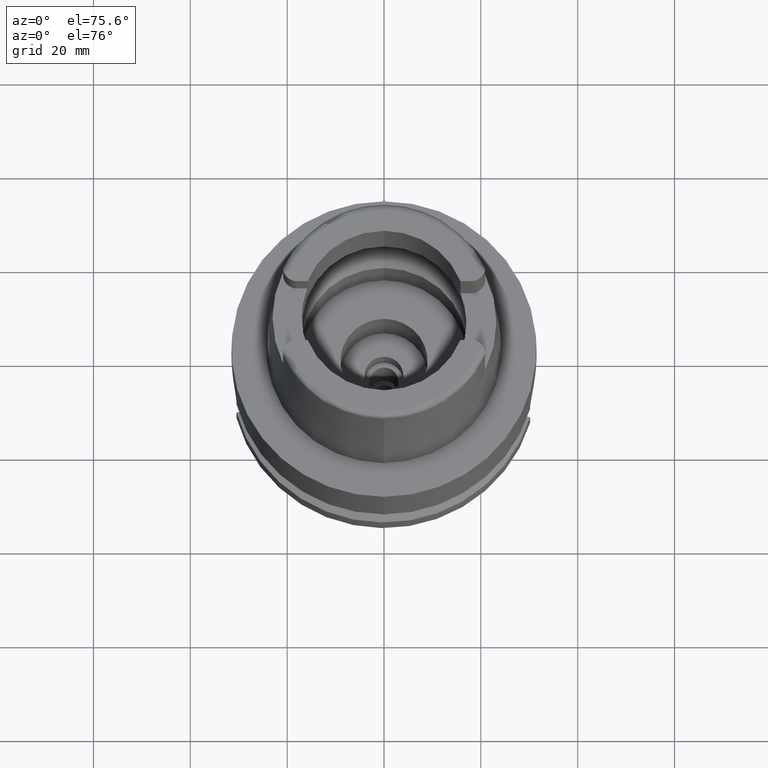
[diagram: clean part render]
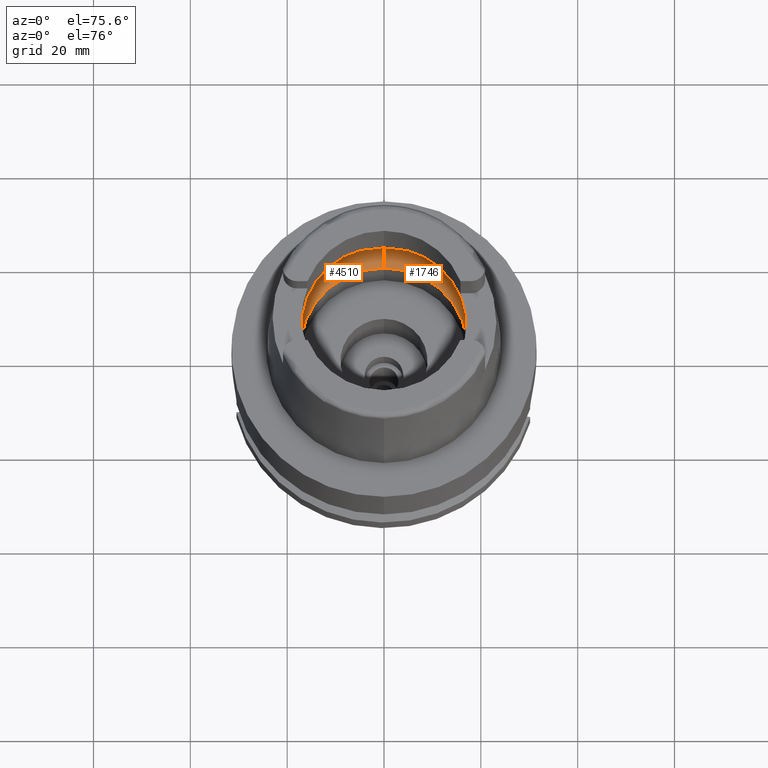
[diagram: same view with one multi-face feature highlighted, each face labeled with its STEP entity id]
A machine part, auxiliary view. The highlighted faces form ONE feature: a constant-radius fillet chain: 2 tangent blend faces with common blend radius 8 mm. The faces share edges in the B-rep.
Their STEP definitions:
[1] entity #1746 (Torus):
#14 = CARTESIAN_POINT ( 'NONE',  ( 19.92517807509134542, 1.343606312467364949, 5.498959791250346285 ) ) ;
#52 = CIRCLE ( 'NONE', #2497, 17.25000000000000000 ) ;
#71 = DIRECTION ( 'NONE',  ( 0.9922879323327794543, -0.1239542631244973381, 0.0000000000000000000 ) ) ;
#99 = CARTESIAN_POINT ( 'NONE',  ( 19.93292498447956262, -1.081634995804885646, 5.408973391216312265 ) ) ;
#175 = AXIS2_PLACEMENT_3D ( 'NONE', #2569, #2219, #4746 ) ;
#295 = CARTESIAN_POINT ( 'NONE',  ( 0.0000000000000000000, 1.300407714776999850E-14, 6.186348233825000875 ) ) ;
#348 = CARTESIAN_POINT ( 'NONE',  ( 0.0000000000000000000, -20.00000000000000000, 6.186348233825000875 ) ) ;
#442 = CARTESIAN_POINT ( 'NONE',  ( 19.84575864665999845, 2.479085262491000030, 6.186348233825000875 ) ) ;
#603 = FACE_OUTER_BOUND ( 'NONE', #2875, .T. ) ;
#651 = VERTEX_POINT ( 'NONE', #348 ) ;
#775 = EDGE_CURVE ( 'NONE', #2667, #5281, #3168, .T. ) ;
#806 = CARTESIAN_POINT ( 'NONE',  ( 19.94501428475999560, 0.4960390492930685236, 5.249999999999998224 ) ) ;
#852 = DIRECTION ( 'NONE',  ( 0.0000000000000000000, -1.000000000000000000, 0.0000000000000000000 ) ) ;
#867 = CARTESIAN_POINT ( 'NONE',  ( 19.92391580955442976, 1.379816291121737759, 5.513020213659978630 ) ) ;
#878 = CIRCLE ( 'NONE', #4798, 20.00000000000001421 ) ;
#884 = CARTESIAN_POINT ( 'NONE',  ( 0.0000000000000000000, 1.300407714776999850E-14, 0.1500000000000999700 ) ) ;
#914 = VERTEX_POINT ( 'NONE', #3913 ) ;
#1002 = CARTESIAN_POINT ( 'NONE',  ( 19.94501428475999916, 0.0000000000000000000, 5.250000000000000000 ) ) ;
#1015 = EDGE_CURVE ( 'NONE', #2017, #2667, #2890, .T. ) ;
#1261 = CARTESIAN_POINT ( 'NONE',  ( 19.92467636941975329, 1.358114210471060179, 5.504562079295280519 ) ) ;
#1320 = CARTESIAN_POINT ( 'NONE',  ( 19.92547029497422173, 1.335024297796715276, 5.495681079271723668 ) ) ;
#1397 = CARTESIAN_POINT ( 'NONE',  ( 0.0000000000000000000, 12.00000000000000000, 6.186348233825000875 ) ) ;
#1453 = CARTESIAN_POINT ( 'NONE',  ( 19.92607280685966842, -1.317062051744477991, 5.488890658955079438 ) ) ;
#1618 = AXIS2_PLACEMENT_3D ( 'NONE', #1397, #3137, #5402 ) ;
#1655 = CARTESIAN_POINT ( 'NONE',  ( 19.86453976246544073, 2.328737270379882762, 6.053877863479702803 ) ) ;
#1688 = CARTESIAN_POINT ( 'NONE',  ( 19.94501428475999916, 0.0000000000000000000, 5.250000000000000000 ) ) ;
#1737 = ORIENTED_EDGE ( 'NONE', *, *, #4333, .F. ) ;
#1746 = ADVANCED_FACE ( 'NONE', ( #603 ), #4362, .F. ) ;
#1783 = DIRECTION ( 'NONE',  ( 0.0000000000000000000, -0.6562500000000006661, -0.7545435292281016393 ) ) ;
#1875 = CARTESIAN_POINT ( 'NONE',  ( 19.93655177456368932, -0.9261205406783343808, 5.364559693695562181 ) ) ;
#1893 = AXIS2_PLACEMENT_3D ( 'NONE', #295, #3337, #2080 ) ;
#1904 = CARTESIAN_POINT ( 'NONE',  ( 19.88332298889634231, -2.178372382208180191, 5.921392606155435168 ) ) ;
#1909 = CARTESIAN_POINT ( 'NONE',  ( 19.84575864665999845, -2.479085262491000030, 6.186348233825000875 ) ) ;
#1929 = AXIS2_PLACEMENT_3D ( 'NONE', #3095, #4925, #1783 ) ;
#1933 = ORIENTED_EDGE ( 'NONE', *, *, #4931, .T. ) ;
#2017 = VERTEX_POINT ( 'NONE', #3221 ) ;
#2080 = DIRECTION ( 'NONE',  ( 0.0000000000000000000, -1.000000000000000000, 0.0000000000000000000 ) ) ;
#2173 = CARTESIAN_POINT ( 'NONE',  ( 19.90056803128315366, 1.871071076464570382, 5.748193068414371609 ) ) ;
#2219 = DIRECTION ( 'NONE',  ( 0.0000000000000000000, 0.0000000000000000000, -1.000000000000000000 ) ) ;
#2305 = CARTESIAN_POINT ( 'NONE',  ( 19.93856665794375260, -0.8185641883581231681, 5.338679171357463282 ) ) ;
#2337 = CARTESIAN_POINT ( 'NONE',  ( 19.92705978489038188, -1.286927501587694644, 5.477698479241642993 ) ) ;
#2497 = AXIS2_PLACEMENT_3D ( 'NONE', #884, #4767, #852 ) ;
#2569 = CARTESIAN_POINT ( 'NONE',  ( 0.0000000000000000000, 1.300407714776999850E-14, 6.186348233825000875 ) ) ;
#2575 = CARTESIAN_POINT ( 'NONE',  ( 19.93856678297499840, 0.9459609421626632431, 5.348221403789444217 ) ) ;
#2600 = ORIENTED_EDGE ( 'NONE', *, *, #775, .F. ) ;
#2667 = VERTEX_POINT ( 'NONE', #5504 ) ;
#2697 = ORIENTED_EDGE ( 'NONE', *, *, #3703, .F. ) ;
#2875 = EDGE_LOOP ( 'NONE', ( #3149, #2600, #3877, #2697, #1933, #1737, #5152 ) ) ;
#2890 = CIRCLE ( 'NONE', #1618, 7.999999999999992895 ) ;
#2970 = CARTESIAN_POINT ( 'NONE',  ( 19.91448547043105677, 1.610506059392766698, 5.612923151449978221 ) ) ;
#2993 = VERTEX_POINT ( 'NONE', #5528 ) ;
#3019 = B_SPLINE_CURVE_WITH_KNOTS ( 'NONE', 3,
 ( #442, #1655, #5150, #2173, #4752, #2970, #4721, #5619, #867, #1261, #14, #1320, #2575, #806, #1688 ),
 .UNSPECIFIED., .F., .F.,
 ( 4, 2, 2, 1, 1, 1, 2, 2, 4 ),
 ( 0.0000000000000000000, 0.2499999999999902300, 0.3749999999999854561, 0.4374999999999831801, 0.4687499999999821254, 0.4843749999999816813, 0.4921874999999816258, 0.4999999999999815703, 1.000000000000000000 ),
 .UNSPECIFIED. ) ;
#3024 = CIRCLE ( 'NONE', #1929, 7.999999999999992895 ) ;
#3095 = CARTESIAN_POINT ( 'NONE',  ( 0.0000000000000000000, -12.00000000000000000, 6.186348233825000875 ) ) ;
#3137 = DIRECTION ( 'NONE',  ( 1.000000000000000000, 0.0000000000000000000, 0.0000000000000000000 ) ) ;
#3149 = ORIENTED_EDGE ( 'NONE', *, *, #3284, .F. ) ;
#3168 = CIRCLE ( 'NONE', #175, 20.00000000000000000 ) ;
#3195 = CARTESIAN_POINT ( 'NONE',  ( 19.92591688602272626, -1.321756895853151592, 5.490652547651766469 ) ) ;
#3220 = CARTESIAN_POINT ( 'NONE',  ( 19.84575864665999845, -2.479085262491000030, 6.186348233825000875 ) ) ;
#3221 = CARTESIAN_POINT ( 'NONE',  ( 0.0000000000000000000, 17.25000000000000000, 0.1500000000000999700 ) ) ;
#3284 = EDGE_CURVE ( 'NONE', #5281, #914, #3019, .T. ) ;
#3337 = DIRECTION ( 'NONE',  ( 0.0000000000000000000, 0.0000000000000000000, -1.000000000000000000 ) ) ;
#3451 = CARTESIAN_POINT ( 'NONE',  ( 0.0000000000000000000, 1.300407714776999850E-14, 6.186348233825000875 ) ) ;
#3567 = CARTESIAN_POINT ( 'NONE',  ( 19.93096047318400110, -1.157940144303397423, 5.432579051026481309 ) ) ;
#3626 = CARTESIAN_POINT ( 'NONE',  ( 19.92840408989551904, -1.244367450968541844, 5.462313551719105043 ) ) ;
#3703 = EDGE_CURVE ( 'NONE', #2993, #2017, #52, .T. ) ;
#3718 = CARTESIAN_POINT ( 'NONE',  ( 19.84575864665999845, 2.479085262491000030, 6.186348233825000875 ) ) ;
#3877 = ORIENTED_EDGE ( 'NONE', *, *, #1015, .F. ) ;
#3913 = CARTESIAN_POINT ( 'NONE',  ( 19.94501428475999916, 0.0000000000000000000, 5.250000000000000000 ) ) ;
#4003 = CARTESIAN_POINT ( 'NONE',  ( 19.94501428475999916, -0.2480014560080615882, 5.249999999999998224 ) ) ;
#4084 = CARTESIAN_POINT ( 'NONE',  ( 19.90996057478010073, -1.795819818033601134, 5.670329850203941646 ) ) ;
#4333 = EDGE_CURVE ( 'NONE', #5283, #651, #878, .T. ) ;
#4362 = TOROIDAL_SURFACE ( 'NONE', #1893, 12.00000000000000000, 8.000000000000000000 ) ;
#4395 = EDGE_CURVE ( 'NONE', #914, #5283, #4560, .T. ) ;
#4481 = CARTESIAN_POINT ( 'NONE',  ( 19.94340237805593219, -0.4850180019504579665, 5.274610396127643597 ) ) ;
#4560 = B_SPLINE_CURVE_WITH_KNOTS ( 'NONE', 3,
 ( #1002, #4003, #4481, #2305, #1875, #99, #3567, #3626, #2337, #5381, #1453, #3195, #4084, #1904, #3220 ),
 .UNSPECIFIED., .F., .F.,
 ( 4, 2, 2, 1, 1, 1, 2, 2, 4 ),
 ( 0.0000000000000000000, 0.2499999999999981681, 0.3749999999999972244, 0.4374999999999969469, 0.4687499999999968359, 0.4843749999999966138, 0.4921874999999966138, 0.4999999999999966693, 1.000000000000000000 ),
 .UNSPECIFIED. ) ;
#4721 = CARTESIAN_POINT ( 'NONE',  ( 19.91819982395858091, 1.528784657194884433, 5.574824959533273727 ) ) ;
#4746 = DIRECTION ( 'NONE',  ( 0.0000000000000000000, 1.000000000000000000, 0.0000000000000000000 ) ) ;
#4752 = CARTESIAN_POINT ( 'NONE',  ( 19.90654467646841042, 1.770005132903174960, 5.691879807081694054 ) ) ;
#4767 = DIRECTION ( 'NONE',  ( 0.0000000000000000000, 0.0000000000000000000, 1.000000000000000000 ) ) ;
#4798 = AXIS2_PLACEMENT_3D ( 'NONE', #3451, #5232, #71 ) ;
#4925 = DIRECTION ( 'NONE',  ( -1.000000000000000000, 0.0000000000000000000, 0.0000000000000000000 ) ) ;
#4931 = EDGE_CURVE ( 'NONE', #2993, #651, #3024, .T. ) ;
#5150 = CARTESIAN_POINT ( 'NONE',  ( 19.88058974809689872, 2.158412543075967527, 5.925203020058914305 ) ) ;
#5152 = ORIENTED_EDGE ( 'NONE', *, *, #4395, .F. ) ;
#5232 = DIRECTION ( 'NONE',  ( 0.0000000000000000000, 0.0000000000000000000, -1.000000000000000000 ) ) ;
#5281 = VERTEX_POINT ( 'NONE', #3718 ) ;
#5283 = VERTEX_POINT ( 'NONE', #1909 ) ;
#5381 = CARTESIAN_POINT ( 'NONE',  ( 19.92646948702511267, -1.305026996693501085, 5.484399654281021164 ) ) ;
#5402 = DIRECTION ( 'NONE',  ( 0.0000000000000000000, 0.6562500000000006661, -0.7545435292281016393 ) ) ;
#5504 = CARTESIAN_POINT ( 'NONE',  ( 0.0000000000000000000, 20.00000000000000000, 6.186348233825000875 ) ) ;
#5528 = CARTESIAN_POINT ( 'NONE',  ( 0.0000000000000000000, -17.25000000000000000, 0.1500000000000999700 ) ) ;
#5619 = CARTESIAN_POINT ( 'NONE',  ( 19.92208516036317434, 1.430034890833928429, 5.533133253826347797 ) ) ;
[2] entity #4510 (Torus):
#104 = CARTESIAN_POINT ( 'NONE',  ( -19.92467624382528868, -1.358118166560958739, 5.504563616461238595 ) ) ;
#164 = CARTESIAN_POINT ( 'NONE',  ( -19.93856674119000161, -0.9459643382330632511, 5.348222180792832070 ) ) ;
#246 = DIRECTION ( 'NONE',  ( 0.0000000000000000000, 1.000000000000000000, 0.0000000000000000000 ) ) ;
#282 = CARTESIAN_POINT ( 'NONE',  ( -19.92591701210032085, 1.321752758000688699, 5.490650989109469471 ) ) ;
#336 = CARTESIAN_POINT ( 'NONE',  ( -19.94340238856858960, 0.4850161375185845780, 5.274610197870727823 ) ) ;
#340 = VERTEX_POINT ( 'NONE', #5618 ) ;
#348 = CARTESIAN_POINT ( 'NONE',  ( 0.0000000000000000000, -20.00000000000000000, 6.186348233825000875 ) ) ;
#352 = CARTESIAN_POINT ( 'NONE',  ( 0.0000000000000000000, 1.300407714776999850E-14, 6.186348233825000875 ) ) ;
#497 = CARTESIAN_POINT ( 'NONE',  ( -19.92391568384000777, -1.379820152732496918, 5.513021742193904728 ) ) ;
#526 = CARTESIAN_POINT ( 'NONE',  ( -19.92547016831344209, -1.335028391746079013, 5.495682638901432604 ) ) ;
#585 = ORIENTED_EDGE ( 'NONE', *, *, #4931, .F. ) ;
#649 = ORIENTED_EDGE ( 'NONE', *, *, #1886, .F. ) ;
#651 = VERTEX_POINT ( 'NONE', #348 ) ;
#725 = CARTESIAN_POINT ( 'NONE',  ( -19.93655182975511408, 0.9261173408846896660, 5.364558887407433474 ) ) ;
#1015 = EDGE_CURVE ( 'NONE', #2017, #2667, #2890, .T. ) ;
#1038 = CIRCLE ( 'NONE', #3957, 20.00000000000000000 ) ;
#1124 = CARTESIAN_POINT ( 'NONE',  ( -19.93096056484117540, 1.157936378928885235, 5.432577832209919855 ) ) ;
#1219 = CIRCLE ( 'NONE', #3232, 17.25000000000000000 ) ;
#1377 = CARTESIAN_POINT ( 'NONE',  ( -19.92208503460736679, -1.430038535463957761, 5.533134759046327567 ) ) ;
#1391 = AXIS2_PLACEMENT_3D ( 'NONE', #2322, #4068, #3553 ) ;
#1392 = DIRECTION ( 'NONE',  ( 0.0000000000000000000, 0.0000000000000000000, -1.000000000000000000 ) ) ;
#1396 = B_SPLINE_CURVE_WITH_KNOTS ( 'NONE', 3,
 ( #4668, #5125, #336, #4642, #725, #4181, #1124, #2065, #4582, #5479, #2865, #282, #2493, #1553, #5071 ),
 .UNSPECIFIED., .F., .F.,
 ( 4, 2, 2, 1, 1, 1, 2, 2, 4 ),
 ( 0.0000000000000000000, 0.2500000000000033862, 0.3750000000000051070, 0.4375000000000059952, 0.4687500000000066058, 0.4843750000000069944, 0.4921875000000069944, 0.5000000000000069944, 1.000000000000000000 ),
 .UNSPECIFIED. ) ;
#1397 = CARTESIAN_POINT ( 'NONE',  ( 0.0000000000000000000, 12.00000000000000000, 6.186348233825000875 ) ) ;
#1553 = CARTESIAN_POINT ( 'NONE',  ( -19.88332307774798835, 2.178371670854048148, 5.921391979387204074 ) ) ;
#1618 = AXIS2_PLACEMENT_3D ( 'NONE', #1397, #3137, #5402 ) ;
#1783 = DIRECTION ( 'NONE',  ( 0.0000000000000000000, -0.6562500000000006661, -0.7545435292281016393 ) ) ;
#1828 = CARTESIAN_POINT ( 'NONE',  ( -19.92517794959957911, -1.343610331872348684, 5.498961333861721812 ) ) ;
#1842 = EDGE_LOOP ( 'NONE', ( #4185, #585, #649, #5229, #4371, #3334, #5171 ) ) ;
#1886 = EDGE_CURVE ( 'NONE', #2017, #2993, #1219, .T. ) ;
#1929 = AXIS2_PLACEMENT_3D ( 'NONE', #3095, #4925, #1783 ) ;
#2017 = VERTEX_POINT ( 'NONE', #3221 ) ;
#2065 = CARTESIAN_POINT ( 'NONE',  ( -19.92840419822510967, 1.244363506210902193, 5.462312164958913030 ) ) ;
#2109 = VERTEX_POINT ( 'NONE', #4166 ) ;
#2127 = CARTESIAN_POINT ( 'NONE',  ( -19.84575864665999845, 2.479085262491000030, 6.186348233825000875 ) ) ;
#2322 = CARTESIAN_POINT ( 'NONE',  ( 0.0000000000000000000, 1.300407714776999850E-14, 6.186348233825000875 ) ) ;
#2329 = TOROIDAL_SURFACE ( 'NONE', #5631, 12.00000000000000000, 8.000000000000000000 ) ;
#2493 = CARTESIAN_POINT ( 'NONE',  ( -19.90996070568236220, 1.795817770063454333, 5.670328448962758117 ) ) ;
#2667 = VERTEX_POINT ( 'NONE', #5504 ) ;
#2694 = CARTESIAN_POINT ( 'NONE',  ( -19.84575864665999845, -2.479085262491000030, 6.186348233825000875 ) ) ;
#2695 = EDGE_CURVE ( 'NONE', #340, #3684, #1396, .T. ) ;
#2716 = DIRECTION ( 'NONE',  ( 0.0000000000000000000, 0.0000000000000000000, -1.000000000000000000 ) ) ;
#2796 = DIRECTION ( 'NONE',  ( 0.0000000000000000000, 0.0000000000000000000, 1.000000000000000000 ) ) ;
#2865 = CARTESIAN_POINT ( 'NONE',  ( -19.92607293039359462, 1.317057967890280290, 5.488889127078697250 ) ) ;
#2890 = CIRCLE ( 'NONE', #1618, 7.999999999999992895 ) ;
#2920 = B_SPLINE_CURVE_WITH_KNOTS ( 'NONE', 3,
 ( #2694, #4433, #4063, #4034, #4459, #4375, #4895, #1377, #497, #104, #1828, #526, #164, #3572, #3606 ),
 .UNSPECIFIED., .F., .F.,
 ( 4, 2, 2, 1, 1, 1, 2, 2, 4 ),
 ( 0.0000000000000000000, 0.2500000000000023315, 0.3750000000000032752, 0.4375000000000036082, 0.4687500000000038858, 0.4843750000000041633, 0.4921875000000042744, 0.5000000000000043299, 1.000000000000000000 ),
 .UNSPECIFIED. ) ;
#2993 = VERTEX_POINT ( 'NONE', #5528 ) ;
#3024 = CIRCLE ( 'NONE', #1929, 7.999999999999992895 ) ;
#3095 = CARTESIAN_POINT ( 'NONE',  ( 0.0000000000000000000, -12.00000000000000000, 6.186348233825000875 ) ) ;
#3131 = DIRECTION ( 'NONE',  ( 0.0000000000000000000, -1.000000000000000000, 0.0000000000000000000 ) ) ;
#3137 = DIRECTION ( 'NONE',  ( 1.000000000000000000, 0.0000000000000000000, 0.0000000000000000000 ) ) ;
#3216 = EDGE_CURVE ( 'NONE', #651, #2109, #1038, .T. ) ;
#3221 = CARTESIAN_POINT ( 'NONE',  ( 0.0000000000000000000, 17.25000000000000000, 0.1500000000000999700 ) ) ;
#3232 = AXIS2_PLACEMENT_3D ( 'NONE', #4085, #2796, #246 ) ;
#3334 = ORIENTED_EDGE ( 'NONE', *, *, #2695, .F. ) ;
#3535 = CARTESIAN_POINT ( 'NONE',  ( 0.0000000000000000000, 1.300407714776999850E-14, 6.186348233825000875 ) ) ;
#3553 = DIRECTION ( 'NONE',  ( -0.9922879323327794543, 0.1239542631244973381, 0.0000000000000000000 ) ) ;
#3572 = CARTESIAN_POINT ( 'NONE',  ( -19.94501428475999560, -0.4960410447512794141, 5.249999999999999112 ) ) ;
#3606 = CARTESIAN_POINT ( 'NONE',  ( -19.94501428475999916, 0.0000000000000000000, 5.250000000000000000 ) ) ;
#3684 = VERTEX_POINT ( 'NONE', #2127 ) ;
#3861 = DIRECTION ( 'NONE',  ( 0.0000000000000000000, -1.000000000000000000, 0.0000000000000000000 ) ) ;
#3957 = AXIS2_PLACEMENT_3D ( 'NONE', #352, #2716, #3861 ) ;
#4034 = CARTESIAN_POINT ( 'NONE',  ( -19.90056792326557300, -1.871072945708251334, 5.748194156555812562 ) ) ;
#4063 = CARTESIAN_POINT ( 'NONE',  ( -19.88058967141808253, -2.158413397975924575, 5.925203673425760265 ) ) ;
#4068 = DIRECTION ( 'NONE',  ( 0.0000000000000000000, 0.0000000000000000000, -1.000000000000000000 ) ) ;
#4085 = CARTESIAN_POINT ( 'NONE',  ( 0.0000000000000000000, 1.300407714776999850E-14, 0.1500000000000999700 ) ) ;
#4166 = CARTESIAN_POINT ( 'NONE',  ( -19.84575864665999845, -2.479085262491000030, 6.186348233825000875 ) ) ;
#4181 = CARTESIAN_POINT ( 'NONE',  ( -19.93292506332444347, 1.081631408177091025, 5.408972312847092567 ) ) ;
#4185 = ORIENTED_EDGE ( 'NONE', *, *, #3216, .F. ) ;
#4371 = ORIENTED_EDGE ( 'NONE', *, *, #5002, .F. ) ;
#4375 = CARTESIAN_POINT ( 'NONE',  ( -19.91448534792914060, -1.610508948442765709, 5.612924528901617194 ) ) ;
#4433 = CARTESIAN_POINT ( 'NONE',  ( -19.86453971831038245, -2.328737623861152795, 6.053878174929121059 ) ) ;
#4459 = CARTESIAN_POINT ( 'NONE',  ( -19.90654456091240476, -1.770007383644878418, 5.691881026691317125 ) ) ;
#4510 = ADVANCED_FACE ( 'NONE', ( #4854 ), #2329, .F. ) ;
#4582 = CARTESIAN_POINT ( 'NONE',  ( -19.92705990198736288, 1.286923474064630035, 5.477697007917259775 ) ) ;
#4642 = CARTESIAN_POINT ( 'NONE',  ( -19.93856669999437514, 0.8185612903795052020, 5.338678534769473849 ) ) ;
#4668 = CARTESIAN_POINT ( 'NONE',  ( -19.94501428475999916, 0.0000000000000000000, 5.250000000000000000 ) ) ;
#4773 = CIRCLE ( 'NONE', #1391, 20.00000000000001421 ) ;
#4854 = FACE_OUTER_BOUND ( 'NONE', #1842, .T. ) ;
#4895 = CARTESIAN_POINT ( 'NONE',  ( -19.91819969907412258, -1.528787881862460729, 5.574826406029533388 ) ) ;
#4925 = DIRECTION ( 'NONE',  ( -1.000000000000000000, 0.0000000000000000000, 0.0000000000000000000 ) ) ;
#4931 = EDGE_CURVE ( 'NONE', #2993, #651, #3024, .T. ) ;
#5002 = EDGE_CURVE ( 'NONE', #3684, #2667, #4773, .T. ) ;
#5071 = CARTESIAN_POINT ( 'NONE',  ( -19.84575864665999845, 2.479085262491000030, 6.186348233825000875 ) ) ;
#5125 = CARTESIAN_POINT ( 'NONE',  ( -19.94501428476000271, 0.2480004543638448522, 5.249999999999999112 ) ) ;
#5171 = ORIENTED_EDGE ( 'NONE', *, *, #5259, .F. ) ;
#5229 = ORIENTED_EDGE ( 'NONE', *, *, #1015, .T. ) ;
#5259 = EDGE_CURVE ( 'NONE', #2109, #340, #2920, .T. ) ;
#5402 = DIRECTION ( 'NONE',  ( 0.0000000000000000000, 0.6562500000000006661, -0.7545435292281016393 ) ) ;
#5479 = CARTESIAN_POINT ( 'NONE',  ( -19.92646960797194922, 1.305022935175548016, 5.484398146633317594 ) ) ;
#5504 = CARTESIAN_POINT ( 'NONE',  ( 0.0000000000000000000, 20.00000000000000000, 6.186348233825000875 ) ) ;
#5528 = CARTESIAN_POINT ( 'NONE',  ( 0.0000000000000000000, -17.25000000000000000, 0.1500000000000999700 ) ) ;
#5618 = CARTESIAN_POINT ( 'NONE',  ( -19.94501428475999916, 0.0000000000000000000, 5.250000000000000000 ) ) ;
#5631 = AXIS2_PLACEMENT_3D ( 'NONE', #3535, #1392, #3131 ) ;